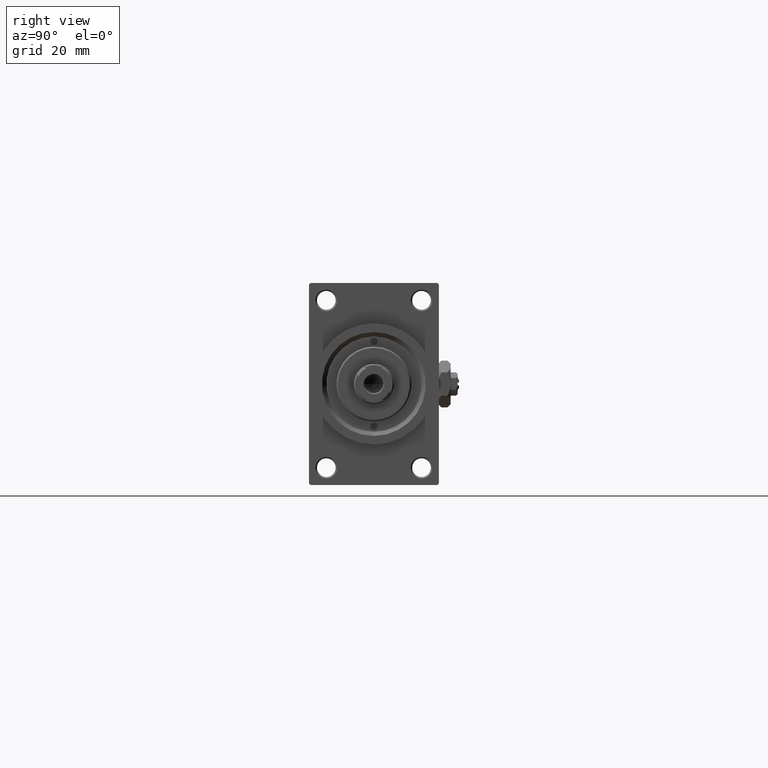
[diagram: clean part render]
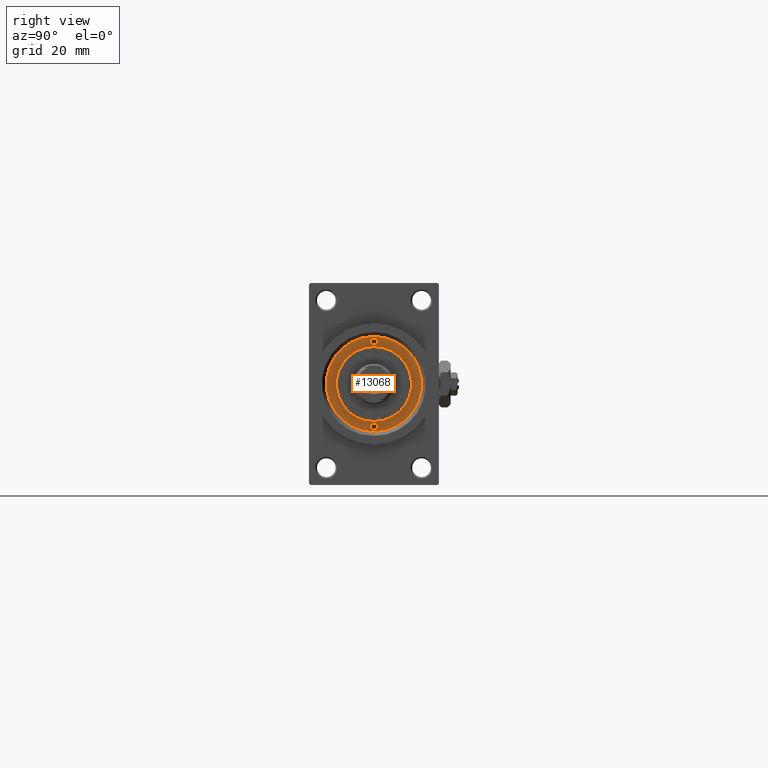
[diagram: same view with one face highlighted and labeled with its STEP entity id]
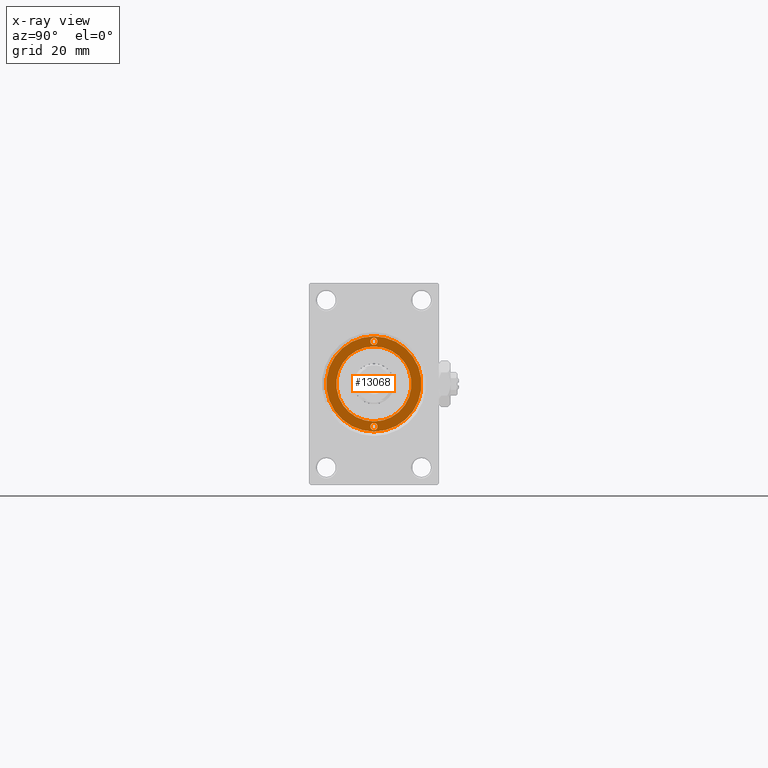
[diagram: x-ray of the same camera — body ghosted, the highlighted face saturated]
A machine part, right view. The second image highlights one B-rep face of the part: STEP entity #13068.
The next image is the same camera in x-ray: the body ghosted, the highlighted face saturated — about 0% of this face is hidden behind the body in this view.
In plain terms, the highlighted planar face has unit normal (1, -0, -0).
Its self-contained STEP definition (entity closure, byte-faithful):
#109 = CARTESIAN_POINT ( 'NONE',  ( 13.50000000000000178, 1.530808498934188612E-16, 43.25999999999999801 ) ) ;
#933 = VERTEX_POINT ( 'NONE', #44542 ) ;
#1154 = EDGE_LOOP ( 'NONE', ( #16523, #35887 ) ) ;
#2046 = AXIS2_PLACEMENT_3D ( 'NONE', #23844, #39090, #4900 ) ;
#2789 = EDGE_CURVE ( 'NONE', #16463, #36239, #22884, .T. ) ;
#3383 = DIRECTION ( 'NONE',  ( 1.000000000000000000, 0.000000000000000000, -0.000000000000000000 ) ) ;
#3453 = DIRECTION ( 'NONE',  ( 0.000000000000000000, 0.000000000000000000, 1.000000000000000000 ) ) ;
#3625 = CARTESIAN_POINT ( 'NONE',  ( 0.000000000000000000, 0.000000000000000000, 43.25999999999999801 ) ) ;
#4125 = FACE_OUTER_BOUND ( 'NONE', #18802, .T. ) ;
#4706 = ORIENTED_EDGE ( 'NONE', *, *, #23808, .T. ) ;
#4900 = DIRECTION ( 'NONE',  ( 1.000000000000000000, 0.000000000000000000, 0.000000000000000000 ) ) ;
#5768 = CARTESIAN_POINT ( 'NONE',  ( -16.50000000000000000, 0.000000000000000000, 43.25999999999999801 ) ) ;
#7173 = CIRCLE ( 'NONE', #10364, 13.00000000000000178 ) ;
#7386 = VERTEX_POINT ( 'NONE', #12689 ) ;
#7609 = DIRECTION ( 'NONE',  ( 1.000000000000000000, 0.000000000000000000, 0.000000000000000000 ) ) ;
#7754 = AXIS2_PLACEMENT_3D ( 'NONE', #18804, #11309, #41781 ) ;
#8040 = DIRECTION ( 'NONE',  ( 0.000000000000000000, 0.000000000000000000, 1.000000000000000000 ) ) ;
#8575 = EDGE_CURVE ( 'NONE', #933, #48919, #7173, .T. ) ;
#9056 = AXIS2_PLACEMENT_3D ( 'NONE', #19267, #8040, #23257 ) ;
#9382 = EDGE_CURVE ( 'NONE', #36239, #16463, #13561, .T. ) ;
#10364 = AXIS2_PLACEMENT_3D ( 'NONE', #22896, #3453, #34389 ) ;
#11309 = DIRECTION ( 'NONE',  ( -0.000000000000000000, -0.000000000000000000, 1.000000000000000000 ) ) ;
#11516 = EDGE_CURVE ( 'NONE', #36756, #22412, #48691, .T. ) ;
#11944 = DIRECTION ( 'NONE',  ( -0.000000000000000000, -0.000000000000000000, 1.000000000000000000 ) ) ;
#12290 = VERTEX_POINT ( 'NONE', #5768 ) ;
#12689 = CARTESIAN_POINT ( 'NONE',  ( 16.50000000000000000, 2.020667218593133100E-15, 43.25999999999999801 ) ) ;
#13068 = ADVANCED_FACE ( 'NONE', ( #23074, #33828, #42055, #4125 ), #14844, .T. ) ;
#13353 = CARTESIAN_POINT ( 'NONE',  ( 13.00000000000000178, 1.592040838891559293E-15, 43.25999999999999801 ) ) ;
#13561 = CIRCLE ( 'NONE', #15176, 1.249999999999997558 ) ;
#14585 = DIRECTION ( 'NONE',  ( 0.000000000000000000, 0.000000000000000000, 1.000000000000000000 ) ) ;
#14844 = PLANE ( 'NONE',  #41629 ) ;
#15176 = AXIS2_PLACEMENT_3D ( 'NONE', #29906, #33162, #40898 ) ;
#15917 = CARTESIAN_POINT ( 'NONE',  ( -13.50000000000000000, 0.000000000000000000, 43.25999999999999801 ) ) ;
#16463 = VERTEX_POINT ( 'NONE', #109 ) ;
#16523 = ORIENTED_EDGE ( 'NONE', *, *, #11516, .F. ) ;
#17013 = AXIS2_PLACEMENT_3D ( 'NONE', #3625, #14585, #7609 ) ;
#18439 = DIRECTION ( 'NONE',  ( 1.000000000000000000, 0.000000000000000000, 0.000000000000000000 ) ) ;
#18802 = EDGE_LOOP ( 'NONE', ( #4706, #31718 ) ) ;
#18804 = CARTESIAN_POINT ( 'NONE',  ( 14.75000000000000000, 0.000000000000000000, 43.25999999999999801 ) ) ;
#18927 = ORIENTED_EDGE ( 'NONE', *, *, #2789, .F. ) ;
#19267 = CARTESIAN_POINT ( 'NONE',  ( 0.000000000000000000, 0.000000000000000000, 43.25999999999999801 ) ) ;
#19334 = DIRECTION ( 'NONE',  ( 0.000000000000000000, 0.000000000000000000, 1.000000000000000000 ) ) ;
#20026 = CARTESIAN_POINT ( 'NONE',  ( 15.99999999999999645, 0.000000000000000000, 43.25999999999999801 ) ) ;
#20222 = CIRCLE ( 'NONE', #17013, 16.50000000000000000 ) ;
#20627 = EDGE_CURVE ( 'NONE', #7386, #12290, #20222, .T. ) ;
#22412 = VERTEX_POINT ( 'NONE', #33739 ) ;
#22670 = DIRECTION ( 'NONE',  ( 1.000000000000000000, 0.000000000000000000, 0.000000000000000000 ) ) ;
#22884 = CIRCLE ( 'NONE', #7754, 1.249999999999997558 ) ;
#22896 = CARTESIAN_POINT ( 'NONE',  ( 0.000000000000000000, 0.000000000000000000, 43.25999999999999801 ) ) ;
#23074 = FACE_BOUND ( 'NONE', #1154, .T. ) ;
#23257 = DIRECTION ( 'NONE',  ( 1.000000000000000000, 0.000000000000000000, 0.000000000000000000 ) ) ;
#23808 = EDGE_CURVE ( 'NONE', #12290, #7386, #42658, .T. ) ;
#23844 = CARTESIAN_POINT ( 'NONE',  ( 0.000000000000000000, 0.000000000000000000, 43.25999999999999801 ) ) ;
#24500 = ORIENTED_EDGE ( 'NONE', *, *, #41804, .F. ) ;
#26438 = EDGE_LOOP ( 'NONE', ( #44634, #18927 ) ) ;
#27015 = EDGE_CURVE ( 'NONE', #22412, #36756, #29212, .T. ) ;
#27159 = CARTESIAN_POINT ( 'NONE',  ( -14.75000000000000000, 0.000000000000000000, 43.25999999999999801 ) ) ;
#29212 = CIRCLE ( 'NONE', #43460, 1.249999999999999334 ) ;
#29906 = CARTESIAN_POINT ( 'NONE',  ( 14.75000000000000000, 0.000000000000000000, 43.25999999999999801 ) ) ;
#30591 = CIRCLE ( 'NONE', #9056, 13.00000000000000178 ) ;
#31718 = ORIENTED_EDGE ( 'NONE', *, *, #20627, .T. ) ;
#33162 = DIRECTION ( 'NONE',  ( -0.000000000000000000, -0.000000000000000000, 1.000000000000000000 ) ) ;
#33739 = CARTESIAN_POINT ( 'NONE',  ( -16.00000000000000000, 1.530808498934188859E-16, 43.25999999999999801 ) ) ;
#33828 = FACE_BOUND ( 'NONE', #26438, .T. ) ;
#34389 = DIRECTION ( 'NONE',  ( 1.000000000000000000, 0.000000000000000000, 0.000000000000000000 ) ) ;
#35177 = AXIS2_PLACEMENT_3D ( 'NONE', #46138, #11944, #18439 ) ;
#35887 = ORIENTED_EDGE ( 'NONE', *, *, #27015, .F. ) ;
#36239 = VERTEX_POINT ( 'NONE', #20026 ) ;
#36756 = VERTEX_POINT ( 'NONE', #15917 ) ;
#36984 = ORIENTED_EDGE ( 'NONE', *, *, #8575, .F. ) ;
#39090 = DIRECTION ( 'NONE',  ( 0.000000000000000000, 0.000000000000000000, 1.000000000000000000 ) ) ;
#40898 = DIRECTION ( 'NONE',  ( 1.000000000000000000, 0.000000000000000000, 0.000000000000000000 ) ) ;
#41463 = EDGE_LOOP ( 'NONE', ( #36984, #24500 ) ) ;
#41629 = AXIS2_PLACEMENT_3D ( 'NONE', #45283, #19334, #3383 ) ;
#41781 = DIRECTION ( 'NONE',  ( 1.000000000000000000, 0.000000000000000000, 0.000000000000000000 ) ) ;
#41804 = EDGE_CURVE ( 'NONE', #48919, #933, #30591, .T. ) ;
#42055 = FACE_BOUND ( 'NONE', #41463, .T. ) ;
#42658 = CIRCLE ( 'NONE', #2046, 16.50000000000000000 ) ;
#43460 = AXIS2_PLACEMENT_3D ( 'NONE', #27159, #45376, #22670 ) ;
#44542 = CARTESIAN_POINT ( 'NONE',  ( -13.00000000000000178, 0.000000000000000000, 43.25999999999999801 ) ) ;
#44634 = ORIENTED_EDGE ( 'NONE', *, *, #9382, .F. ) ;
#45283 = CARTESIAN_POINT ( 'NONE',  ( 0.000000000000000000, 0.000000000000000000, 43.25999999999999801 ) ) ;
#45376 = DIRECTION ( 'NONE',  ( -0.000000000000000000, -0.000000000000000000, 1.000000000000000000 ) ) ;
#46138 = CARTESIAN_POINT ( 'NONE',  ( -14.75000000000000000, 0.000000000000000000, 43.25999999999999801 ) ) ;
#48691 = CIRCLE ( 'NONE', #35177, 1.249999999999999334 ) ;
#48919 = VERTEX_POINT ( 'NONE', #13353 ) ;